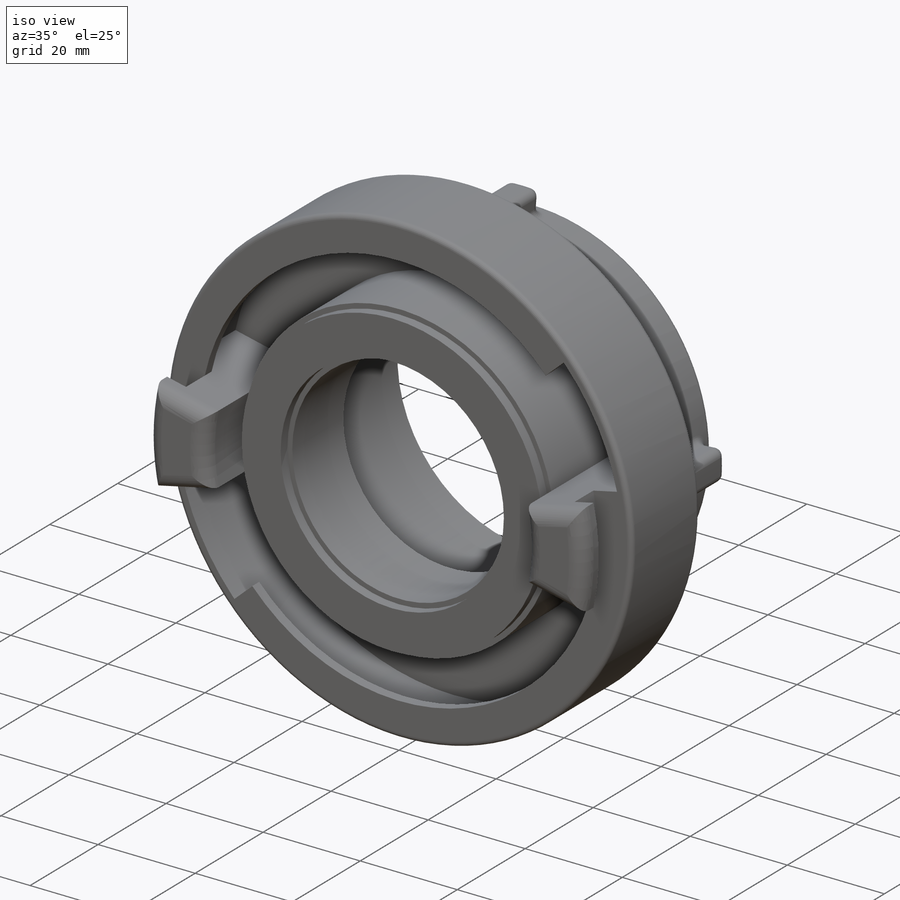
[diagram: iso view]
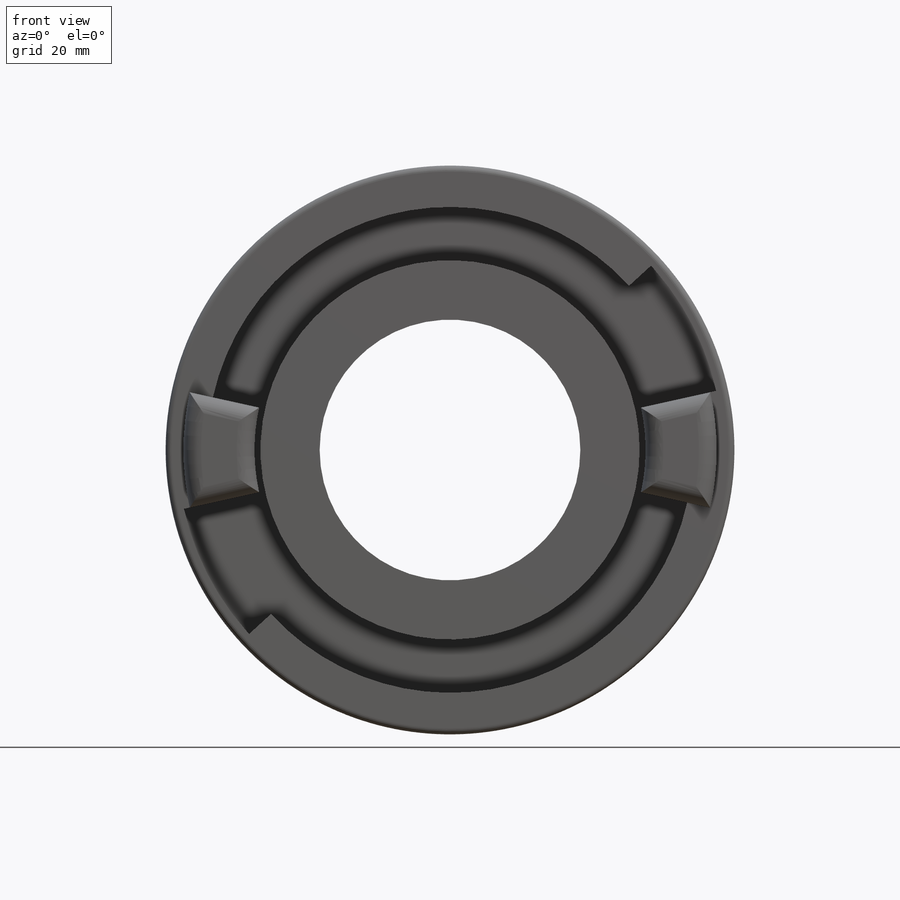
[diagram: front view]
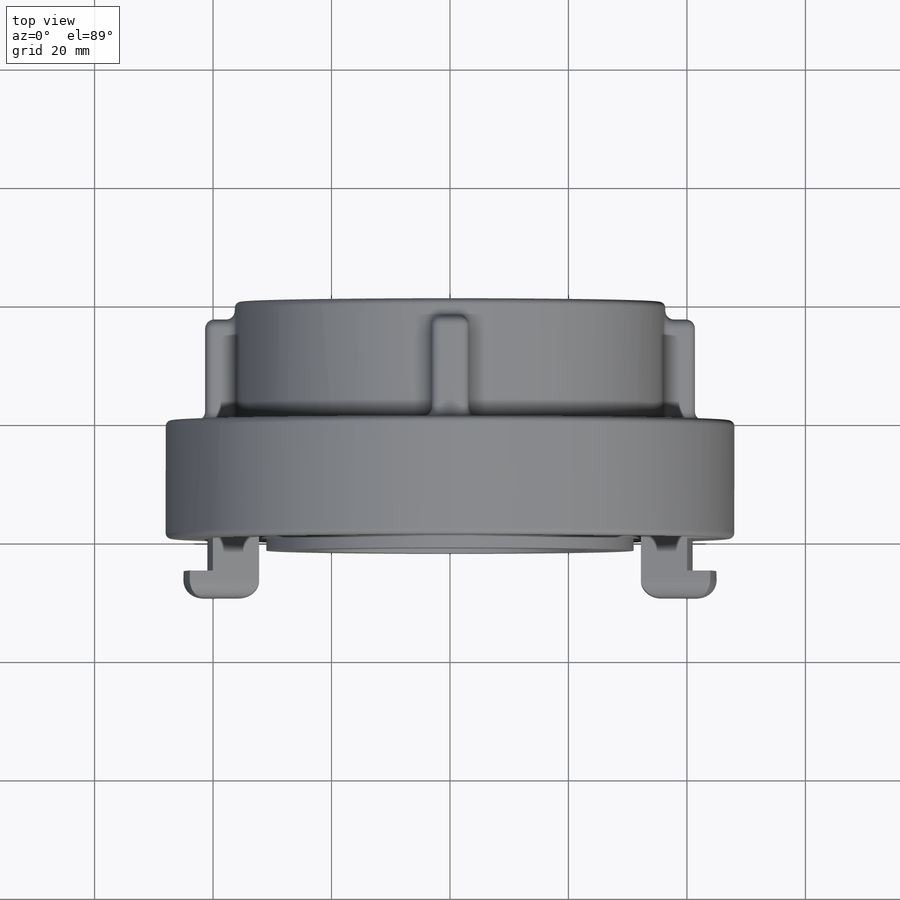
[diagram: top view]
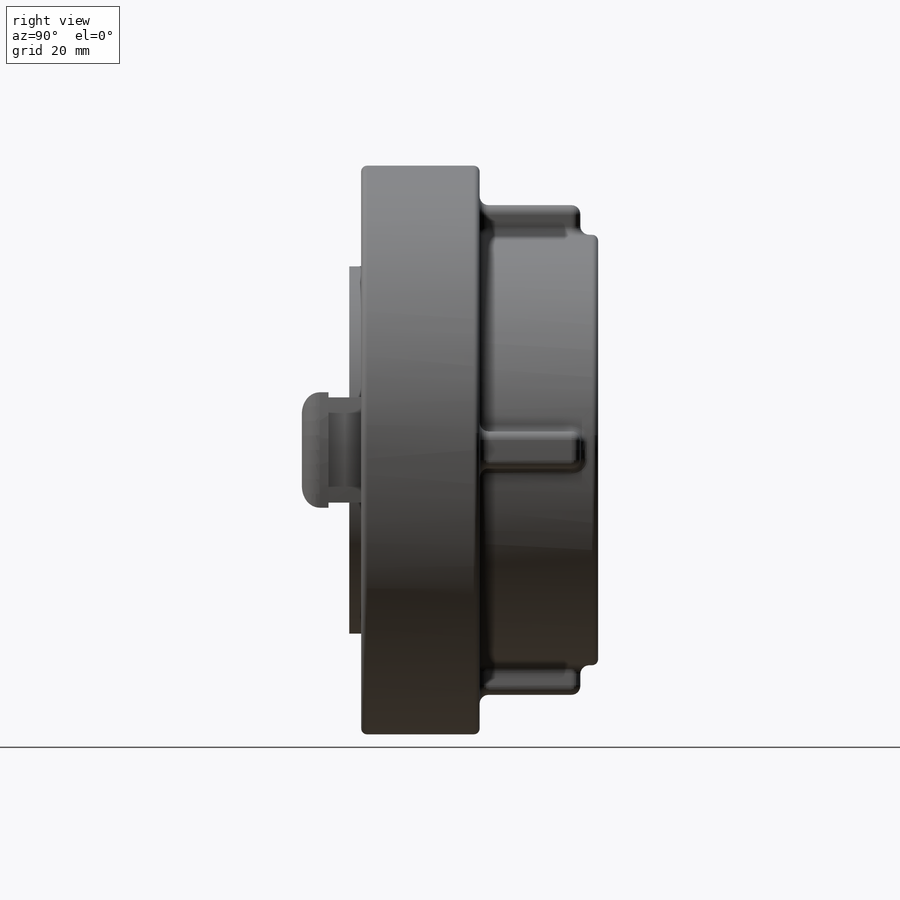
[diagram: right view]
SOLIDWORKS PART (.sldprt)
format: sldprt  version: not decoded by parser v0  size: 929,280 bytes
history: native  units: mm
features: sketch x7, plane x3, revolve x3, fillet x3, cut_extrude x2, pattern_circular x2, material x1, thread x1, cut_revolve x1, extrude x1 + 1 further entry (+10 scaffold rows collapsed)
feature tree (35):
  scaffold x10  (default folders/planes/origin — collapsed)
  material  "Material <nicht festgelegt>"
  plane  "Vorne"
  plane  "Oben"
  plane  "Rechts"
  "Tabelle"
  sketch  "Skizze1"  dims[D1=44.0mm D2=44.85mm D3=8.0mm D4=20.0mm D5=96.0mm D6=20.0mm D7=15.0mm]
  revolve  "Rotation1"  [1 undecoded]
  thread  "Gewindedarstellung1"  Diameter=47.8mm  [1 undecoded]
  sketch  "Skizze3"  dims[D1=10.0mm D2=7.0mm]
  cut_extrude  "Schnitt-Linear austragen1"  Depth=4mm
  sketch  "Skizze9"  dims[D1=2.0mm D2=2.0mm]
  cut_revolve  "Schnitt-Rotation1"  Angle=360deg
  sketch  "Skizze5"  dims[c1.D1=66.0mm c1.D2=5.5mm c1.D3=10.0mm c1.D4=15.0mm c1.D5=4.5mm c2.D2=5.0mm c2.D5=4.5mm c2.D4=3.0mm c3.D2=4.5mm]
  revolve  "Rotation2"  Angle=25deg
  fillet  "Verrundung1"  Radius=3mm
  sketch  "Skizze6"  dims[c1.D1=45.0mm c1.D2=46.0mm c2.D1=1.0mm c2.D2=5.0mm c3.D2=30.0deg]
  cut_extrude  "Schnitt-Linear austragen2"  [1 undecoded]
  pattern_circular  "Kreismuster1"  Count=2 Angle=360deg
  sketch  "Skizze7"  dims[D1=0.0mm D2=1.0mm D3=1.0mm]
  extrude  "Linear austragen1"  Depth=2mm
  fillet  "Verrundung3"  Radius=1mm
  sketch  "Skizze8"  dims[c1.D1=5.0mm c1.D2=3.0mm c2.D1=5.0mm c2.D2=3.0mm]
  revolve  "Rotation3"  Angle=9deg
  fillet  "Verrundung2"  Radius=1.5mm
  pattern_circular  "Kreismuster3"  Count=4 Angle=360deg
decode coverage: 18 of 20 modeling features carry decoded parameters; 1 rows unclassified (native names shown)
note: 3 parameter values undecoded
note: suppression state not decoded; provenance and decode notes live in map.json
